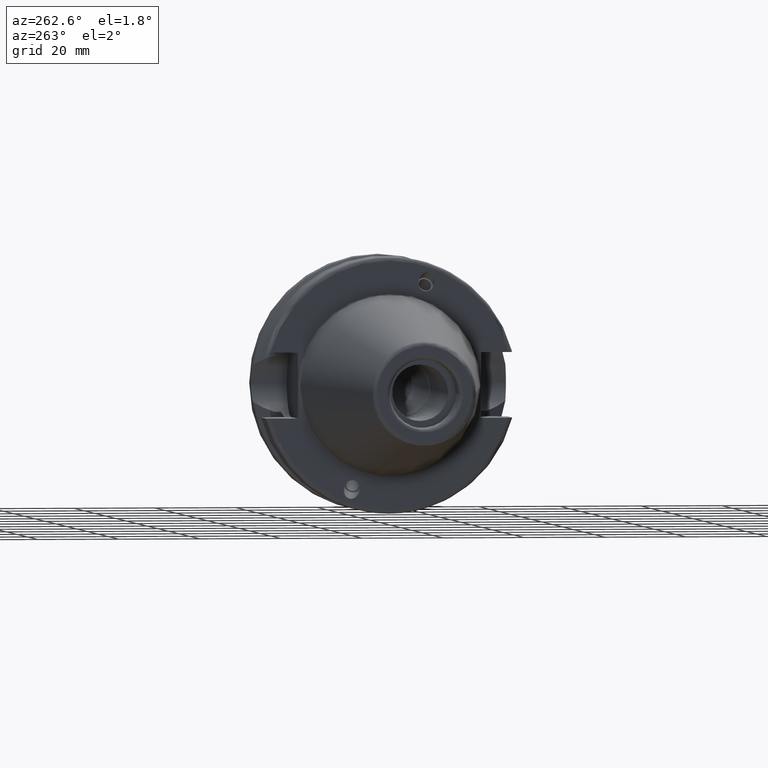
[diagram: clean part render]
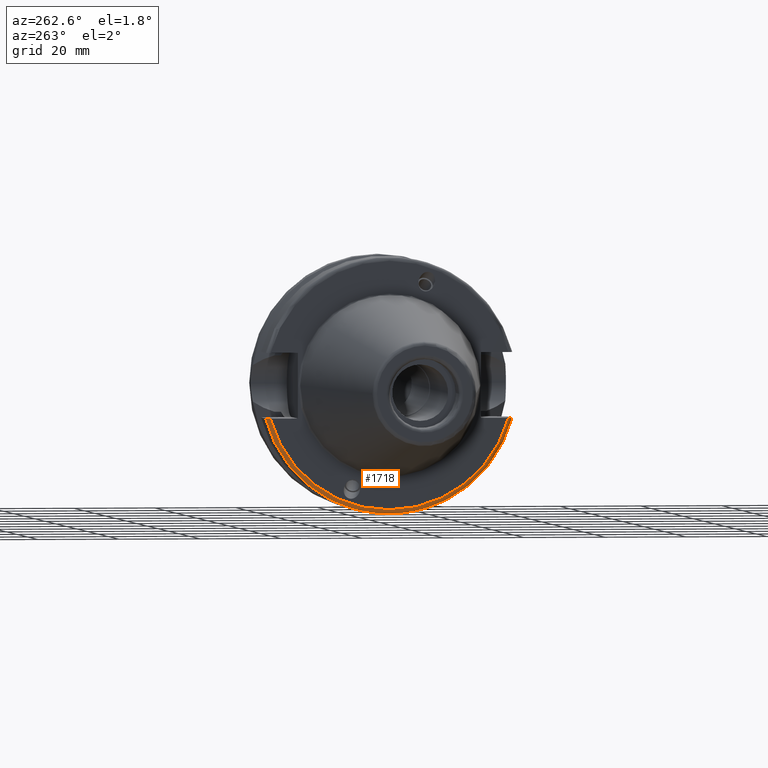
[diagram: same view with one face highlighted and labeled with its STEP entity id]
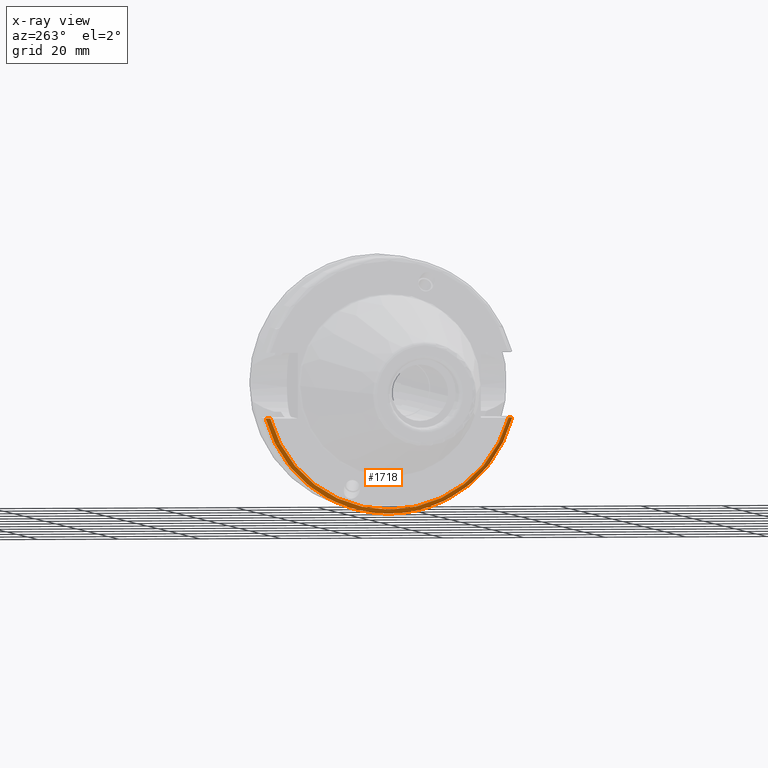
[diagram: x-ray of the same camera — body ghosted, the highlighted face saturated]
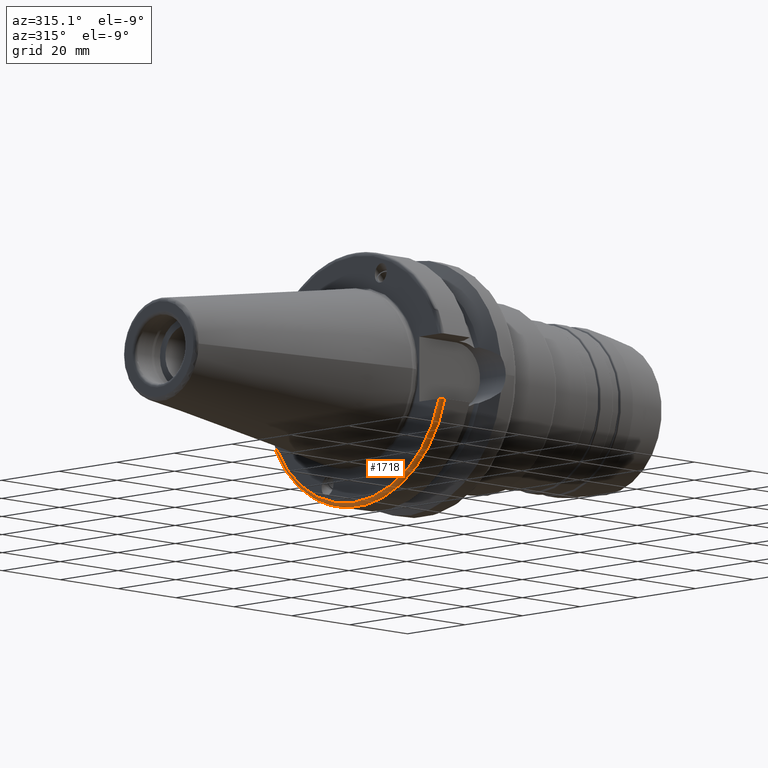
[diagram: same view with one face highlighted and labeled with its STEP entity id]
A machine part, auxiliary view. The second image highlights one B-rep face of the part: STEP entity #1718.
The next image is the same camera in x-ray: the body ghosted, the highlighted face saturated — about 0% of this face is hidden behind the body in this view.
A second angle (auxiliary view) of the same face is appended — the face is thin or edge-on in the first view.
In plain terms, the highlighted toroidal blend (fillet) surface has major radius 30.5 mm and minor (blend) radius 1 mm.
Its self-contained STEP definition (entity closure, byte-faithful):
#71=TOROIDAL_SURFACE('',#1962,30.5,1.00000000000001);
#109=B_SPLINE_CURVE_WITH_KNOTS('',3,(#3176,#3177,#3178,#3179,#3180,#3181,
#3182,#3183,#3184,#3185),.UNSPECIFIED.,.F.,.F.,(4,2,2,2,4),(0.,0.0366169489027566,
0.0738743445372396,0.111946181815504,0.150751871388631),.UNSPECIFIED.);
#113=B_SPLINE_CURVE_WITH_KNOTS('',3,(#3258,#3259,#3260,#3261,#3262,#3263,
#3264,#3265,#3266,#3267),.UNSPECIFIED.,.F.,.F.,(4,2,2,2,4),(-0.150751871388631,
-0.111946181815504,-0.0738743445372396,-0.0366169489027566,0.),
 .UNSPECIFIED.);
#199=FACE_OUTER_BOUND('',#300,.T.);
#300=EDGE_LOOP('',(#1468,#1469,#1470,#1471));
#586=CIRCLE('',#1961,31.5);
#587=CIRCLE('',#1963,30.5);
#759=VERTEX_POINT('',#3173);
#760=VERTEX_POINT('',#3175);
#774=VERTEX_POINT('',#3252);
#775=VERTEX_POINT('',#3256);
#997=EDGE_CURVE('',#760,#759,#109,.T.);
#1020=EDGE_CURVE('',#760,#774,#586,.T.);
#1022=EDGE_CURVE('',#759,#775,#587,.T.);
#1023=EDGE_CURVE('',#775,#774,#113,.T.);
#1468=ORIENTED_EDGE('',*,*,#997,.T.);
#1469=ORIENTED_EDGE('',*,*,#1022,.T.);
#1470=ORIENTED_EDGE('',*,*,#1023,.T.);
#1471=ORIENTED_EDGE('',*,*,#1020,.F.);
#1718=ADVANCED_FACE('',(#199),#71,.T.);
#1961=AXIS2_PLACEMENT_3D('',#3253,#2475,#2476);
#1962=AXIS2_PLACEMENT_3D('',#3255,#2478,#2479);
#1963=AXIS2_PLACEMENT_3D('',#3257,#2480,#2481);
#2475=DIRECTION('center_axis',(1.,0.,0.));
#2476=DIRECTION('ref_axis',(0.,0.,-1.));
#2478=DIRECTION('center_axis',(1.,0.,0.));
#2479=DIRECTION('ref_axis',(0.,0.,-1.));
#2480=DIRECTION('center_axis',(1.,0.,0.));
#2481=DIRECTION('ref_axis',(0.,0.,-1.));
#3173=CARTESIAN_POINT('',(1.99999999999999,-29.4184890842477,-8.05));
#3175=CARTESIAN_POINT('',(2.99999999999999,-30.4540227227866,-8.05));
#3176=CARTESIAN_POINT('Ctrl Pts',(3.,-30.4540227227866,-8.05));
#3177=CARTESIAN_POINT('Ctrl Pts',(2.87794350365748,-30.4540227227866,-8.05));
#3178=CARTESIAN_POINT('Ctrl Pts',(2.73442803339431,-30.4247631098996,-8.05));
#3179=CARTESIAN_POINT('Ctrl Pts',(2.50758665841081,-30.3289456947341,-8.05));
#3180=CARTESIAN_POINT('Ctrl Pts',(2.38465986426588,-30.2446912007727,-8.05));
#3181=CARTESIAN_POINT('Ctrl Pts',(2.2089547883793,-30.0653098968133,-8.05));
#3182=CARTESIAN_POINT('Ctrl Pts',(2.12587454939785,-29.9376810968085,-8.05));
#3183=CARTESIAN_POINT('Ctrl Pts',(2.02950258743517,-29.7002346307938,-8.05));
#3184=CARTESIAN_POINT('Ctrl Pts',(1.99999999999999,-29.5478413828248,-8.05));
#3185=CARTESIAN_POINT('Ctrl Pts',(1.99999999999999,-29.4184890842477,-8.05));
#3252=CARTESIAN_POINT('',(2.99999999999999,30.4540227227866,-8.05));
#3253=CARTESIAN_POINT('Origin',(2.99999999999999,0.,0.));
#3255=CARTESIAN_POINT('Origin',(3.,0.,0.));
#3256=CARTESIAN_POINT('',(1.99999999999999,29.4184890842477,-8.05));
#3257=CARTESIAN_POINT('Origin',(1.99999999999999,0.,0.));
#3258=CARTESIAN_POINT('Ctrl Pts',(1.99999999999999,29.4184890842477,-8.05));
#3259=CARTESIAN_POINT('Ctrl Pts',(1.99999999999999,29.5478413828248,-8.05));
#3260=CARTESIAN_POINT('Ctrl Pts',(2.02950258743517,29.7002346307938,-8.05));
#3261=CARTESIAN_POINT('Ctrl Pts',(2.12587454939785,29.9376810968085,-8.05));
#3262=CARTESIAN_POINT('Ctrl Pts',(2.2089547883793,30.0653098968133,-8.05));
#3263=CARTESIAN_POINT('Ctrl Pts',(2.38465986426588,30.2446912007727,-8.05));
#3264=CARTESIAN_POINT('Ctrl Pts',(2.50758665841081,30.3289456947341,-8.05));
#3265=CARTESIAN_POINT('Ctrl Pts',(2.73442803339431,30.4247631098996,-8.05));
#3266=CARTESIAN_POINT('Ctrl Pts',(2.87794350365748,30.4540227227866,-8.05));
#3267=CARTESIAN_POINT('Ctrl Pts',(3.,30.4540227227866,-8.05));